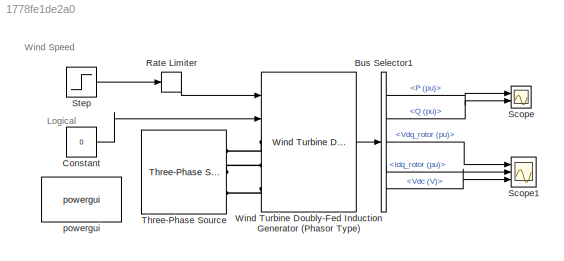
MODEL slx_1778fe1de2a0
KIND model
CONFIG AbsTol = auto
CONFIG EnableMultiTasking = off
CONFIG FixedStep = auto
CONFIG MaxStep = auto
CONFIG MinStep = auto
CONFIG RelTol = 1e-3
CONFIG SampleTimeConstraint = Unconstrained
CONFIG Solver = VariableStepAuto
CONFIG SolverName = VariableStepAuto
CONFIG StartTime = 0.0
CONFIG StopTime = 0.5
BLOCK [BusSelector] Bus Selector1
  OutputSignals = P (pu),Q (pu),Vdq_rotor (pu),Idq_rotor (pu),Vdc (V)
  Ports = [1, 5]
BLOCK [Constant] Constant
  Value = 0
BLOCK [RateLimiter] Rate Limiter
BLOCK [Scope] Scope
  Floating = off
  NumInputPorts = 2
  Ports = [2]
  ScopeSpecificationString = Simulink.scopes.TimeScopeBlockCfg('CurrentConfiguration', extmgr.ConfigurationSet(extmgr.Configuration('Core','General UI',true,'FigureColor',[1 1 1]),extmgr.Configuration('Core','Source UI',true),extmgr.Configuration('Sources','WiredSimulink',true),extmgr.Configuration('Visuals','Time Domain',true,'SerializedDisplays',{struct('MinYLimReal','-1860.90995','MaxYLimReal','1198.45079','YLabelReal','',...<+2247ch>
BLOCK [Scope] Scope1
  Floating = off
  NumInputPorts = 3
  Ports = [3]
  ScopeSpecificationString = Simulink.scopes.TimeScopeBlockCfg('CurrentConfiguration', extmgr.ConfigurationSet(extmgr.Configuration('Core','General UI',true,'FigureColor',[1 1 1]),extmgr.Configuration('Core','Source UI',true),extmgr.Configuration('Sources','WiredSimulink',true,'DataLoggingVariableName','ScopeData1'),extmgr.Configuration('Visuals','Time Domain',true,'SerializedDisplays',{struct('MinYLimReal','-15.09909','MaxYL...<+4070ch>
BLOCK [Step] Step
  After = 16
  Before = 6
  SampleTime = 0
  Time = 4
BLOCK [Reference] Three-Phase Source  REF=powerlib/Electrical
Sources/Three-Phase Source
  Ports = [0, 0, 0, 0, 0, 0, 3]
  SourceBlock = powerlib/Electrical\nSources/Three-Phase Source
  SourceProductBaseCode = PS
  SourceType = Three-Phase Source
BLOCK [Reference] Wind Turbine Doubly-Fed Induction Generator (Phasor Type)  REF=re_lib/Wind Generation/Wind Turbine
Doubly-Fed Induction Generator
(Phasor Type)
  Ports = [2, 1, 0, 0, 0, 3]
  SourceBlock = re_lib/Wind Generation/Wind Turbine\nDoubly-Fed Induction Generator\n(Phasor Type)
  SourceProductBaseCode = PS
  SourceType = Wind Turbine Doubly-Fed Induction Generator (Phasor Type)
BLOCK [Reference] powergui  REF=powerlib/powergui
  Ports = []
  Priority = 2
  SourceBlock = powerlib/powergui
  SourceProductBaseCode = PS
  SourceType = PSB option menu block
ANNOTATION (root): Logical
ANNOTATION (root): Wind Speed
LINE Bus Selector1:1 -> Scope:1
LINE Bus Selector1:2 -> Scope:2
LINE Bus Selector1:3 -> Scope1:1
LINE Bus Selector1:4 -> Scope1:2
LINE Bus Selector1:5 -> Scope1:3
LINE Constant:1 -> Wind Turbine Doubly-Fed Induction Generator (Phasor Type):2
LINE Rate Limiter:1 -> Wind Turbine Doubly-Fed Induction Generator (Phasor Type):1
LINE Step:1 -> Rate Limiter:1
LINE Wind Turbine Doubly-Fed Induction Generator (Phasor Type):1 -> Bus Selector1:1
PLINE Three-Phase Source:RConn1 -- Wind Turbine Doubly-Fed Induction Generator (Phasor Type):LConn1
PLINE Three-Phase Source:RConn2 -- Wind Turbine Doubly-Fed Induction Generator (Phasor Type):LConn2
PLINE Three-Phase Source:RConn3 -- Wind Turbine Doubly-Fed Induction Generator (Phasor Type):LConn3
